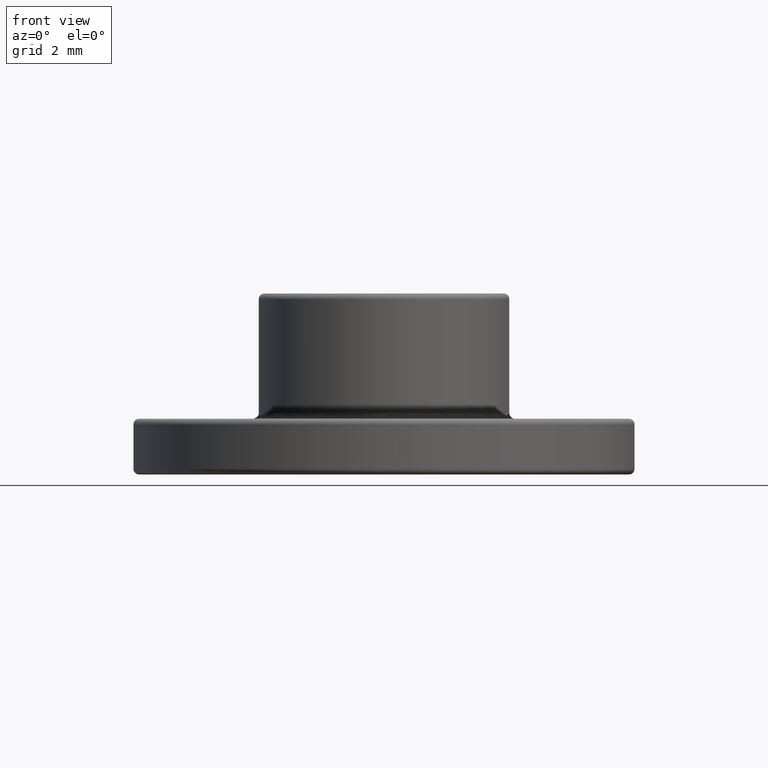
[diagram: clean part render]
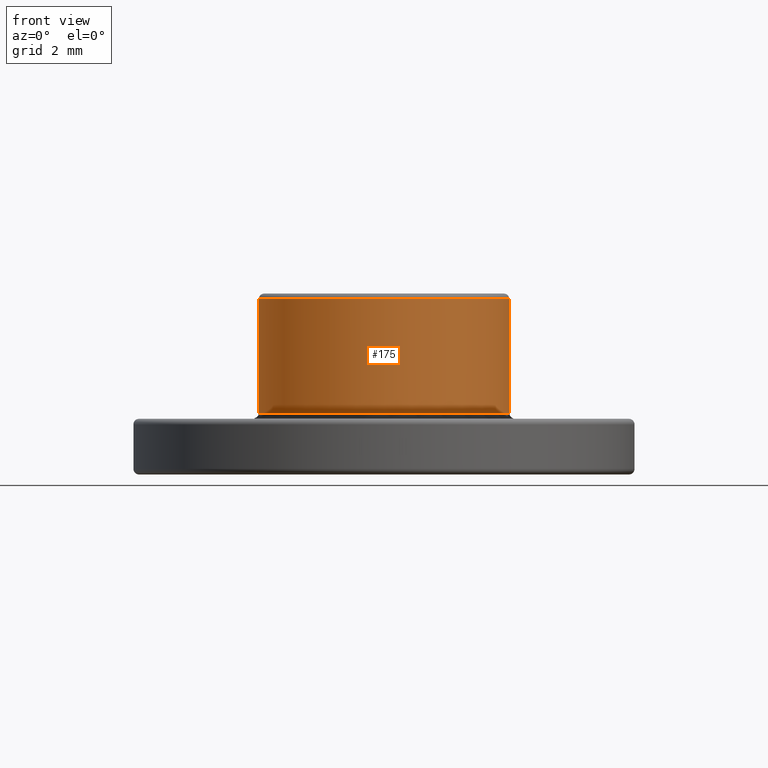
[diagram: same view with one face highlighted and labeled with its STEP entity id]
A machine part, front view. The second image highlights one B-rep face of the part: STEP entity #175.
In plain terms, the highlighted cylindrical surface (bore or boss wall) has radius 4.5 mm, axis along (0, 0, 1).
Its self-contained STEP definition (entity closure, byte-faithful):
#16=LINE('',#333,#19);
#19=VECTOR('',#269,4.5);
#22=CYLINDRICAL_SURFACE('',#216,4.5);
#34=FACE_OUTER_BOUND('',#47,.T.);
#47=EDGE_LOOP('',(#132,#133,#134,#135,#136));
#63=CIRCLE('',#213,4.5);
#66=CIRCLE('',#217,4.5);
#67=CIRCLE('',#218,4.5);
#83=VERTEX_POINT('',#324);
#85=VERTEX_POINT('',#330);
#86=VERTEX_POINT('',#331);
#100=EDGE_CURVE('',#83,#83,#63,.T.);
#103=EDGE_CURVE('',#85,#86,#66,.T.);
#104=EDGE_CURVE('',#85,#83,#16,.T.);
#105=EDGE_CURVE('',#86,#85,#67,.T.);
#132=ORIENTED_EDGE('',*,*,#103,.F.);
#133=ORIENTED_EDGE('',*,*,#104,.T.);
#134=ORIENTED_EDGE('',*,*,#100,.F.);
#135=ORIENTED_EDGE('',*,*,#104,.F.);
#136=ORIENTED_EDGE('',*,*,#105,.F.);
#175=ADVANCED_FACE('',(#34),#22,.T.);
#213=AXIS2_PLACEMENT_3D('',#325,#259,#260);
#216=AXIS2_PLACEMENT_3D('',#329,#265,#266);
#217=AXIS2_PLACEMENT_3D('',#332,#267,#268);
#218=AXIS2_PLACEMENT_3D('',#334,#270,#271);
#259=DIRECTION('center_axis',(0.,0.,-1.));
#260=DIRECTION('ref_axis',(-1.,0.,0.));
#265=DIRECTION('center_axis',(0.,0.,1.));
#266=DIRECTION('ref_axis',(-1.,0.,0.));
#267=DIRECTION('center_axis',(0.,0.,1.));
#268=DIRECTION('ref_axis',(-1.,0.,0.));
#269=DIRECTION('',(0.,0.,-1.));
#270=DIRECTION('center_axis',(0.,0.,1.));
#271=DIRECTION('ref_axis',(-1.,0.,0.));
#324=CARTESIAN_POINT('',(4.5,-5.51091059616309E-16,0.2));
#325=CARTESIAN_POINT('Origin',(0.,0.,0.2));
#329=CARTESIAN_POINT('Origin',(0.,0.,0.));
#330=CARTESIAN_POINT('',(4.5,5.51091059616309E-16,4.3));
#331=CARTESIAN_POINT('',(-4.5,-5.51091059616309E-16,4.3));
#332=CARTESIAN_POINT('Origin',(0.,0.,4.3));
#333=CARTESIAN_POINT('',(4.5,5.51091059616309E-16,0.));
#334=CARTESIAN_POINT('Origin',(0.,0.,4.3));